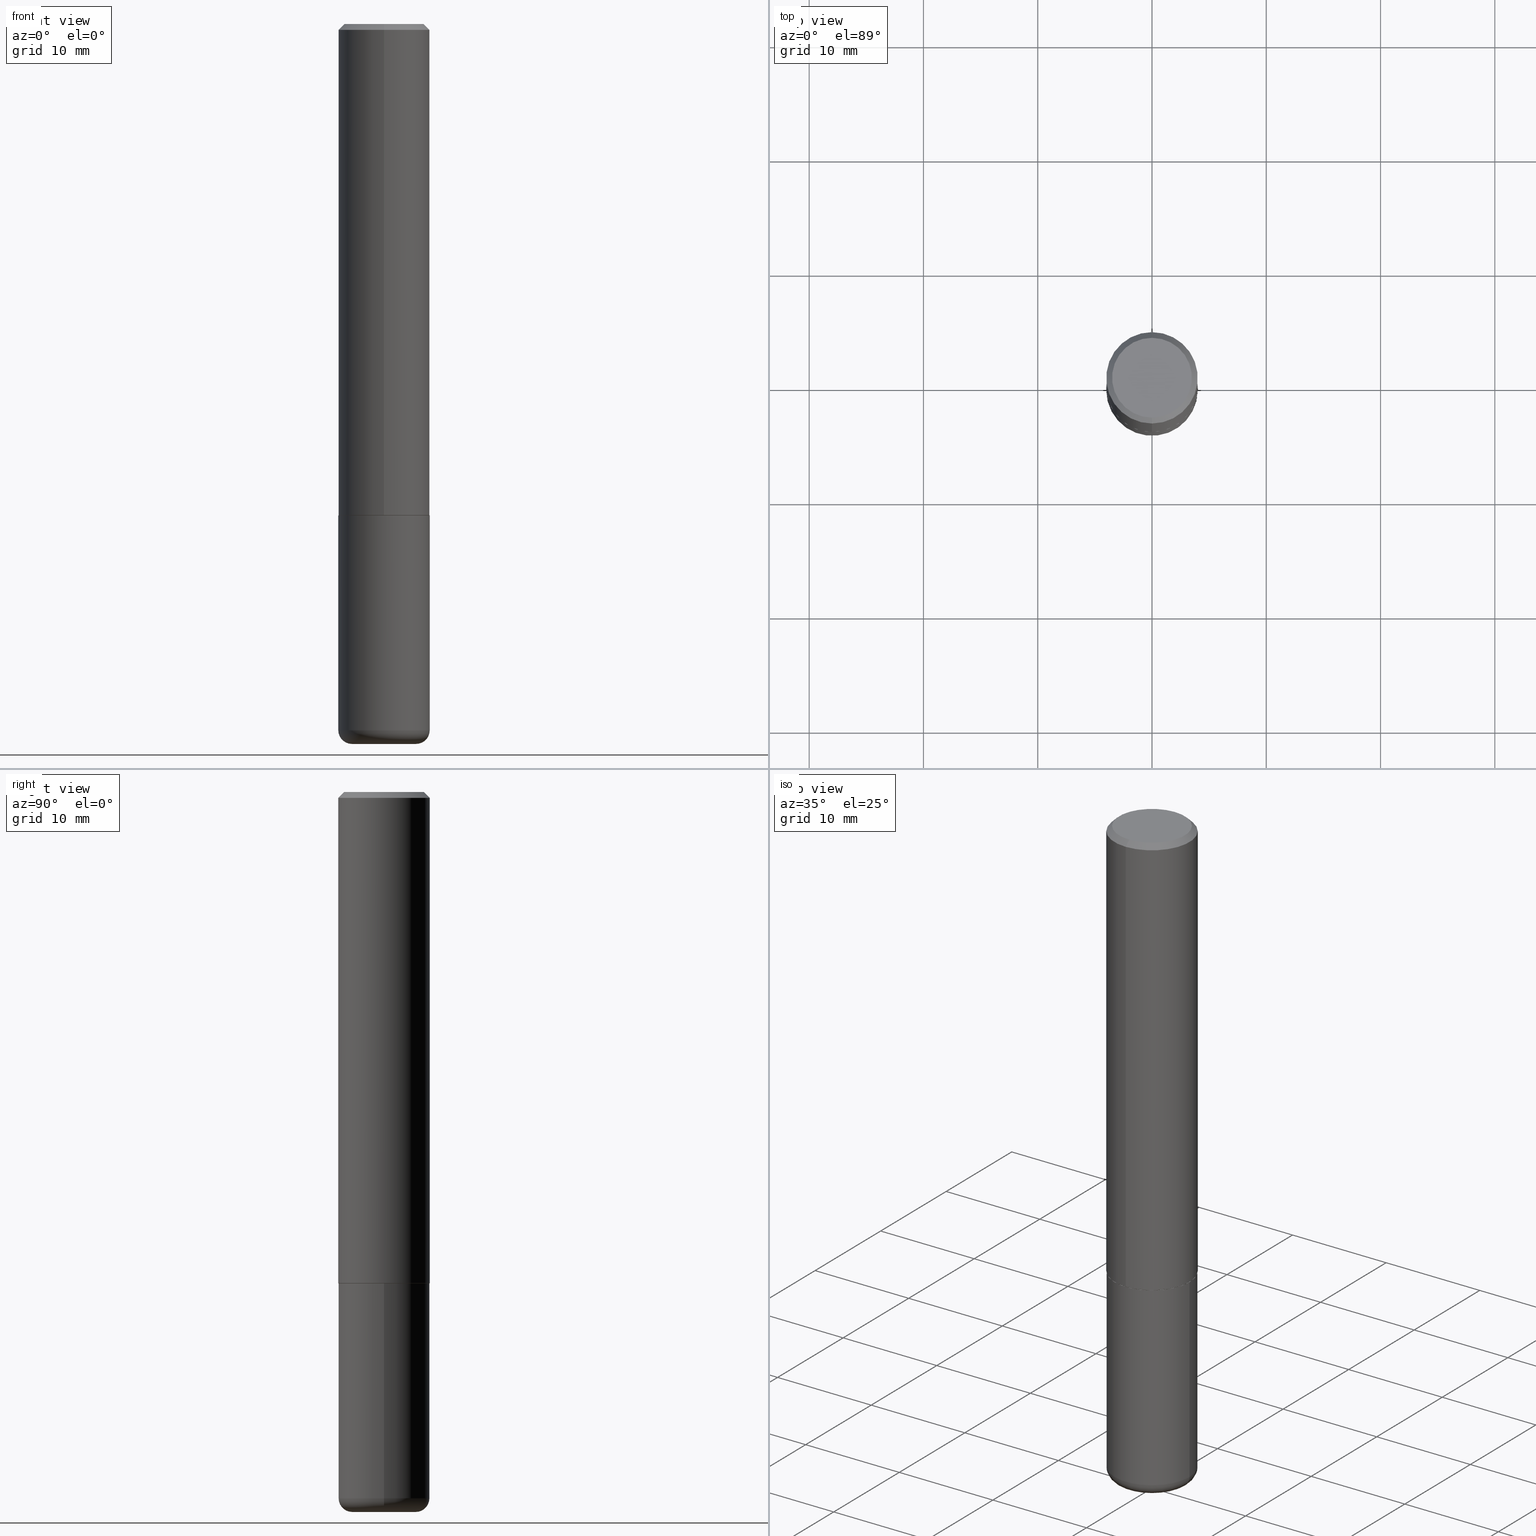
[diagram: canonical four-view strip — front | top / right | iso, engineering-drawing reading convention]
A machine part, canonical four-view strip (front | top / right | iso — engineering-drawing reading convention). The complete STEP part file that produces these views, byte-faithful:
ISO-10303-21;
HEADER;
FILE_DESCRIPTION (( 'STEP AP203' ),
    '1' );
FILE_NAME ('45150.STEP',
    '2024-03-04T15:10:30',
    ( '' ),
    ( '' ),
    'SwSTEP 2.0',
    'SolidWorks 2023',
    '' );
FILE_SCHEMA (( 'CONFIG_CONTROL_DESIGN' ));
ENDSEC;

DATA;
#1 = EDGE_LOOP ( 'NONE', ( #234, #64, #136, #199 ) ) ;
#2 = AXIS2_PLACEMENT_3D ( 'NONE', #149, #152, #279 ) ;
#3 = CIRCLE ( 'NONE', #412, 0.1575000000000000011 ) ;
#4 = EDGE_CURVE ( 'NONE', #377, #75, #38, .T. ) ;
#5 = APPROVAL_ROLE ( '' ) ;
#6 = COORDINATED_UNIVERSAL_TIME_OFFSET ( 5, 0, .BEHIND. ) ;
#7 = CARTESIAN_POINT ( 'NONE',  ( -1.099816621735587677E-15, -0.1575000000000001399, 5.491498622301760285E-16 ) ) ;
#8 = AXIS2_PLACEMENT_3D ( 'NONE', #70, #78, #360 ) ;
#9 = PERSON_AND_ORGANIZATION_ROLE ( 'classification_officer' ) ;
#10 = EDGE_CURVE ( 'NONE', #171, #101, #342, .T. ) ;
#11 = PERSON_AND_ORGANIZATION ( #401, #87 ) ;
#12 = DIRECTION ( 'NONE',  ( -6.982962677686265922E-15, -1.000000000000000000, 3.469013325287948560E-15 ) ) ;
#13 = EDGE_CURVE ( 'NONE', #361, #301, #168, .T. ) ;
#14 = CARTESIAN_POINT ( 'NONE',  ( 4.897662969233072813E-31, -6.973331583875268020E-17, -0.02000000000000006981 ) ) ;
#15 = CARTESIAN_POINT ( 'NONE',  ( -1.092833659057859065E-15, -0.1565000000000058844, -1.692899999999999849 ) ) ;
#16 = AXIS2_PLACEMENT_3D ( 'NONE', #331, #416, #164 ) ;
#17 = CC_DESIGN_APPROVAL ( #108, ( #398 ) ) ;
#18 = DIRECTION ( 'NONE',  ( 2.438088387897960049E-29, -3.491481338843145188E-15, -1.000000000000000000 ) ) ;
#19 = CARTESIAN_POINT ( 'NONE',  ( 1.111999381464598010E-15, 0.1564999999999940883, -1.692900000000000960 ) ) ;
#20 = DIRECTION ( 'NONE',  ( 2.448831484616528367E-29, -3.486665791937622522E-15, -1.000000000000000000 ) ) ;
#21 = ORIENTED_EDGE ( 'NONE', *, *, #245, .T. ) ;
#22 = VECTOR ( 'NONE', #186, 39.37007874015748143 ) ;
#23 = AXIS2_PLACEMENT_3D ( 'NONE', #261, #376, #157 ) ;
#24 = ADVANCED_FACE ( 'NONE', ( #363 ), #402, .F. ) ;
#25 = CARTESIAN_POINT ( 'NONE',  ( -1.099816621735546854E-15, -0.1575000000000061351, -1.691899999999999737 ) ) ;
#26 =( LENGTH_UNIT ( ) NAMED_UNIT ( * ) SI_UNIT ( $, .METRE. ) );
#27 = ORIENTED_EDGE ( 'NONE', *, *, #45, .T. ) ;
#28 = DIRECTION ( 'NONE',  ( 2.448831484616528086E-29, -3.486665791937622128E-15, -1.000000000000000000 ) ) ;
#29 = EDGE_LOOP ( 'NONE', ( #323, #229, #267, #165 ) ) ;
#30 = FACE_OUTER_BOUND ( 'NONE', #359, .T. ) ;
#31 = ADVANCED_FACE ( 'NONE', ( #309 ), #91, .T. ) ;
#32 = AXIS2_PLACEMENT_3D ( 'NONE', #235, #33, #241 ) ;
#33 = DIRECTION ( 'NONE',  ( -2.445468806185136597E-29, 3.491481338843145583E-15, 1.000000000000000000 ) ) ;
#34 = UNCERTAINTY_MEASURE_WITH_UNIT (LENGTH_MEASURE( 1.000000000000000082E-05 ), #411, 'distance_accuracy_value', 'NONE');
#35 = ORIENTED_EDGE ( 'NONE', *, *, #409, .F. ) ;
#36 = DIRECTION ( 'NONE',  ( -6.982962677686265133E-15, -1.000000000000000000, 3.486665791937622522E-15 ) ) ;
#37 = EDGE_LOOP ( 'NONE', ( #414, #324 ) ) ;
#38 = CIRCLE ( 'NONE', #107, 0.1575000000000000011 ) ;
#39 = EDGE_CURVE ( 'NONE', #51, #352, #328, .T. ) ;
#40 = VECTOR ( 'NONE', #132, 39.37007874015748143 ) ;
#41 = ORIENTED_EDGE ( 'NONE', *, *, #385, .T. ) ;
#42 = DIRECTION ( 'NONE',  ( -6.982962677686266711E-15, -1.000000000000000000, 3.486665791937622128E-15 ) ) ;
#43 = DATE_AND_TIME ( #337, #413 ) ;
#44 = ADVANCED_BREP_SHAPE_REPRESENTATION ( '45150', ( #214, #82, #161 ), #312 ) ;
#45 = EDGE_CURVE ( 'NONE', #171, #51, #210, .T. ) ;
#46 = CIRCLE ( 'NONE', #175, 0.1565000000000000002 ) ;
#47 = APPROVAL_ROLE ( '' ) ;
#48 = EDGE_CURVE ( 'NONE', #296, #305, #86, .T. ) ;
#49 = CARTESIAN_POINT ( 'NONE',  ( 0.1575000000000000011, -7.010545380263150133E-15, -1.692900000000000293 ) ) ;
#50 = CARTESIAN_POINT ( 'NONE',  ( 0.1102999999999999814, -9.430141948081447954E-15, -2.480299999999999727 ) ) ;
#51 = VERTEX_POINT ( 'NONE', #218 ) ;
#52 = AXIS2_PLACEMENT_3D ( 'NONE', #287, #410, #197 ) ;
#53 = FACE_OUTER_BOUND ( 'NONE', #173, .T. ) ;
#54 = DIRECTION ( 'NONE',  ( 4.937700262164537787E-15, 0.7071067811865436870, -0.7071067811865513475 ) ) ;
#55 = SHAPE_DEFINITION_REPRESENTATION ( #318, #44 ) ;
#56 = EDGE_CURVE ( 'NONE', #101, #171, #76, .T. ) ;
#57 = LINE ( 'NONE', #283, #406 ) ;
#58 = CARTESIAN_POINT ( 'NONE',  ( 5.950070152329056268E-29, -8.495123245539259088E-15, -2.433100000000000485 ) ) ;
#59 = EDGE_LOOP ( 'NONE', ( #327, #348, #67, #353 ) ) ;
#60 = AXIS2_PLACEMENT_3D ( 'NONE', #343, #316, #400 ) ;
#61 = ADVANCED_FACE ( 'NONE', ( #313 ), #192, .T. ) ;
#62 = MECHANICAL_CONTEXT ( 'NONE', #357, 'mechanical' ) ;
#63 = EDGE_CURVE ( 'NONE', #305, #75, #246, .T. ) ;
#64 = ORIENTED_EDGE ( 'NONE', *, *, #409, .T. ) ;
#65 = EDGE_LOOP ( 'NONE', ( #162, #236 ) ) ;
#66 = CARTESIAN_POINT ( 'NONE',  ( -1.080528434649015779E-15, -0.1575000000000000844, -0.01999999999999951816 ) ) ;
#67 = ORIENTED_EDGE ( 'NONE', *, *, #188, .F. ) ;
#68 = CIRCLE ( 'NONE', #23, 0.1375000000000003442 ) ;
#69 = CC_DESIGN_APPROVAL ( #196, ( #189 ) ) ;
#70 = CARTESIAN_POINT ( 'NONE',  ( 5.950070152329056268E-29, -8.495123245539257510E-15, -2.433100000000000041 ) ) ;
#71 = CARTESIAN_POINT ( 'NONE',  ( 4.145626820307322090E-29, -5.902576519171201823E-15, -1.692900000000000293 ) ) ;
#72 = CARTESIAN_POINT ( 'NONE',  ( 4.139934141990818918E-29, -5.910728758527562653E-15, -1.692900000000000293 ) ) ;
#73 = CC_DESIGN_PERSON_AND_ORGANIZATION_ASSIGNMENT ( #147, #271, ( #189 ) ) ;
#74 = EDGE_CURVE ( 'NONE', #155, #377, #213, .T. ) ;
#75 = VERTEX_POINT ( 'NONE', #49 ) ;
#76 = CIRCLE ( 'NONE', #320, 0.1575000000000002232 ) ;
#77 = AXIS2_PLACEMENT_3D ( 'NONE', #325, #28, #163 ) ;
#78 = DIRECTION ( 'NONE',  ( -2.445468806185136597E-29, 3.491481338843145583E-15, 1.000000000000000000 ) ) ;
#79 = APPROVAL_PERSON_ORGANIZATION ( #277, #108, #47 ) ;
#80 = DATE_AND_TIME ( #183, #407 ) ;
#81 = CARTESIAN_POINT ( 'NONE',  ( 0.000000000000000000, 0.000000000000000000, 0.000000000000000000 ) ) ;
#82 = MANIFOLD_SOLID_BREP ( 'Body-Move/Copy2[2]', #222 ) ;
#83 = SECURITY_CLASSIFICATION_LEVEL ( 'unclassified' ) ;
#84 = PRODUCT ( '45150', '45150', '', ( #62 ) ) ;
#85 = APPROVAL_STATUS ( 'not_yet_approved' ) ;
#86 = CIRCLE ( 'NONE', #257, 0.04719999999999970747 ) ;
#87 = ORGANIZATION ( 'UNSPECIFIED', 'UNSPECIFIED', '' ) ;
#88 = CARTESIAN_POINT ( 'NONE',  ( -0.1574999999999999456, 1.119104808822157406E-15, -7.747322767151474182E-30 ) ) ;
#89 = PLANE ( 'NONE',  #239 ) ;
#90 = DIRECTION ( 'NONE',  ( 1.000000000000000000, -6.982962677686267499E-15, 4.876176775795935793E-29 ) ) ;
#91 = CYLINDRICAL_SURFACE ( 'NONE', #405, 0.1574999999999999456 ) ;
#92 = CARTESIAN_POINT ( 'NONE',  ( 4.897662969233072813E-31, -6.973331583875268020E-17, -0.02000000000000006981 ) ) ;
#93 = FACE_OUTER_BOUND ( 'NONE', #278, .T. ) ;
#94 = EDGE_CURVE ( 'NONE', #101, #352, #282, .T. ) ;
#95 = DIRECTION ( 'NONE',  ( -2.445468806185136597E-29, 3.491481338843145583E-15, 1.000000000000000000 ) ) ;
#96 = ORIENTED_EDGE ( 'NONE', *, *, #94, .F. ) ;
#97 = APPLICATION_CONTEXT ( 'configuration controlled 3d designs of mechanical parts and assemblies' ) ;
#98 = PLANE ( 'NONE',  #77 ) ;
#99 = CONICAL_SURFACE ( 'NONE', #379, 0.1565000000000000002, 0.7853981633975336552 ) ;
#100 = DIRECTION ( 'NONE',  ( 1.000000000000000000, 0.000000000000000000, 0.000000000000000000 ) ) ;
#101 = VERTEX_POINT ( 'NONE', #216 ) ;
#102 = ORIENTED_EDGE ( 'NONE', *, *, #245, .F. ) ;
#103 = CARTESIAN_POINT ( 'NONE',  ( 4.145626820307322090E-29, -5.902576519171201823E-15, -1.692900000000000293 ) ) ;
#104 = EDGE_LOOP ( 'NONE', ( #384, #319, #293, #102 ) ) ;
#105 = ORIENTED_EDGE ( 'NONE', *, *, #39, .T. ) ;
#106 = ADVANCED_FACE ( 'NONE', ( #126 ), #115, .T. ) ;
#107 = AXIS2_PLACEMENT_3D ( 'NONE', #202, #139, #417 ) ;
#108 = APPROVAL ( #242, 'UNSPECIFIED' ) ;
#109 = CIRCLE ( 'NONE', #187, 0.1565000000000000002 ) ;
#110 = CARTESIAN_POINT ( 'NONE',  ( 0.000000000000000000, 0.000000000000000000, 0.000000000000000000 ) ) ;
#111 = ORIENTED_EDGE ( 'NONE', *, *, #48, .F. ) ;
#112 = PERSON_AND_ORGANIZATION_ROLE ( 'design_owner' ) ;
#113 = DIMENSIONAL_EXPONENTS ( 1.000000000000000000, 0.000000000000000000, 0.000000000000000000, 0.000000000000000000, 0.000000000000000000, 0.000000000000000000, 0.000000000000000000 ) ;
#114 = ADVANCED_FACE ( 'NONE', ( #53 ), #181, .T. ) ;
#115 = TOROIDAL_SURFACE ( 'NONE', #251, 0.1102999999999999814, 0.04719999999999970747 ) ;
#116 = ADVANCED_FACE ( 'NONE', ( #30 ), #286, .T. ) ;
#117 = CARTESIAN_POINT ( 'NONE',  ( 0.1102999999999999814, -9.265344028888053283E-15, -2.433100000000000485 ) ) ;
#118 = PERSON_AND_ORGANIZATION ( #401, #87 ) ;
#119 = CARTESIAN_POINT ( 'NONE',  ( 4.145626820307322090E-29, -5.902576519171201823E-15, -1.692900000000000293 ) ) ;
#120 = COORDINATED_UNIVERSAL_TIME_OFFSET ( 5, 0, .BEHIND. ) ;
#121 = CIRCLE ( 'NONE', #60, 0.1575000000000000289 ) ;
#122 = CARTESIAN_POINT ( 'NONE',  ( 4.143177988822704896E-29, -5.899089853379264171E-15, -1.691900000000000404 ) ) ;
#123 = EDGE_CURVE ( 'NONE', #263, #391, #109, .T. ) ;
#124 = CALENDAR_DATE ( 2024, 4, 3 ) ;
#125 = CARTESIAN_POINT ( 'NONE',  ( 1.119104808822158392E-15, 0.1575000000000001399, -5.491498622301760285E-16 ) ) ;
#126 = FACE_OUTER_BOUND ( 'NONE', #292, .T. ) ;
#127 = LINE ( 'NONE', #19, #40 ) ;
#128 = CARTESIAN_POINT ( 'NONE',  ( 0.1574999999999998346, -9.594939867274844201E-15, -2.433100000000000041 ) ) ;
#129 = FACE_OUTER_BOUND ( 'NONE', #37, .T. ) ;
#130 = CARTESIAN_POINT ( 'NONE',  ( 1.099816621735587480E-15, 0.1574999999999999456, -0.02000000000000061798 ) ) ;
#131 = ORIENTED_EDGE ( 'NONE', *, *, #215, .F. ) ;
#132 = DIRECTION ( 'NONE',  ( 5.024295867788490741E-15, 0.7071067811866103003, 0.7071067811864847341 ) ) ;
#133 = DIRECTION ( 'NONE',  ( 1.000000000000000000, -6.982962677686270655E-15, 0.000000000000000000 ) ) ;
#134 = ORIENTED_EDGE ( 'NONE', *, *, #45, .F. ) ;
#135 = EDGE_CURVE ( 'NONE', #391, #101, #127, .T. ) ;
#136 = ORIENTED_EDGE ( 'NONE', *, *, #63, .T. ) ;
#137 = EDGE_CURVE ( 'NONE', #301, #361, #68, .T. ) ;
#138 = FACE_OUTER_BOUND ( 'NONE', #388, .T. ) ;
#139 = DIRECTION ( 'NONE',  ( -2.445468806185136597E-29, 3.491481338843145583E-15, 1.000000000000000000 ) ) ;
#140 = VECTOR ( 'NONE', #370, 39.37007874015748143 ) ;
#141 = VECTOR ( 'NONE', #247, 39.37007874015748143 ) ;
#142 = ADVANCED_FACE ( 'NONE', ( #93 ), #195, .T. ) ;
#143 = APPROVAL_DATE_TIME ( #43, #196 ) ;
#144 = ORIENTED_EDGE ( 'NONE', *, *, #339, .F. ) ;
#145 = LOCAL_TIME ( 10, 10, 30.00000000000000000, #174 ) ;
#146 = CARTESIAN_POINT ( 'NONE',  ( 0.1574999999999999456, -1.099816621735586691E-15, 7.679978421878596632E-30 ) ) ;
#147 = PERSON_AND_ORGANIZATION ( #401, #87 ) ;
#148 = PRODUCT_RELATED_PRODUCT_CATEGORY ( 'detail', '', ( #84 ) ) ;
#149 = CARTESIAN_POINT ( 'NONE',  ( 4.897662969233072813E-31, -6.973331583875268020E-17, -0.02000000000000006981 ) ) ;
#150 = DIRECTION ( 'NONE',  ( -4.937700262164969294E-15, -0.7071067811866054154, 0.7071067811864896191 ) ) ;
#151 = AXIS2_PLACEMENT_3D ( 'NONE', #198, #322, #133 ) ;
#152 = DIRECTION ( 'NONE',  ( 2.448831484616528367E-29, -3.486665791937622522E-15, -1.000000000000000000 ) ) ;
#153 = DIRECTION ( 'NONE',  ( -6.982962677686264344E-15, -1.000000000000000000, 3.496114991891764787E-15 ) ) ;
#154 = DIRECTION ( 'NONE',  ( -1.000000000000000000, 6.982962677686265922E-15, -4.876176775795935793E-29 ) ) ;
#155 = VERTEX_POINT ( 'NONE', #221 ) ;
#156 = DIRECTION ( 'NONE',  ( -2.448831484616528367E-29, 3.486665791937622522E-15, 1.000000000000000000 ) ) ;
#157 = DIRECTION ( 'NONE',  ( -6.982962677686266711E-15, -1.000000000000000000, 3.486665791937622128E-15 ) ) ;
#158 = AXIS2_PLACEMENT_3D ( 'NONE', #14, #394, #153 ) ;
#159 = DIRECTION ( 'NONE',  ( -2.448831484616528367E-29, 3.486665791937622522E-15, 1.000000000000000000 ) ) ;
#160 = CARTESIAN_POINT ( 'NONE',  ( 7.437750759005219545E-45, -1.058992883066534334E-30, -3.037265244966386949E-16 ) ) ;
#161 = AXIS2_PLACEMENT_3D ( 'NONE', #81, #289, #100 ) ;
#162 = ORIENTED_EDGE ( 'NONE', *, *, #188, .T. ) ;
#163 = DIRECTION ( 'NONE',  ( 6.982962677686265922E-15, 1.000000000000000000, -3.486665791937622128E-15 ) ) ;
#164 = DIRECTION ( 'NONE',  ( -1.000000000000000000, 7.105427357601001859E-15, 0.000000000000000000 ) ) ;
#165 = ORIENTED_EDGE ( 'NONE', *, *, #314, .T. ) ;
#166 = ORIENTED_EDGE ( 'NONE', *, *, #39, .F. ) ;
#167 = EDGE_LOOP ( 'NONE', ( #255, #227 ) ) ;
#168 = CIRCLE ( 'NONE', #306, 0.1375000000000003442 ) ;
#169 = VECTOR ( 'NONE', #295, 39.37007874015748143 ) ;
#170 = LOCAL_TIME ( 10, 10, 30.00000000000000000, #369 ) ;
#171 = VERTEX_POINT ( 'NONE', #25 ) ;
#172 = CARTESIAN_POINT ( 'NONE',  ( 1.029986994958725760E-15, 0.1375000000000003442, -7.831430708880630046E-16 ) ) ;
#173 = EDGE_LOOP ( 'NONE', ( #268, #404, #21, #231 ) ) ;
#174 = COORDINATED_UNIVERSAL_TIME_OFFSET ( 5, 0, .BEHIND. ) ;
#175 = AXIS2_PLACEMENT_3D ( 'NONE', #71, #266, #299 ) ;
#176 = FACE_OUTER_BOUND ( 'NONE', #104, .T. ) ;
#177 = EDGE_CURVE ( 'NONE', #296, #275, #307, .T. ) ;
#178 = DIRECTION ( 'NONE',  ( -2.445468806185136597E-29, 3.491481338843145583E-15, 1.000000000000000000 ) ) ;
#179 = ORIENTED_EDGE ( 'NONE', *, *, #94, .T. ) ;
#180 = ADVANCED_FACE ( 'NONE', ( #129 ), #98, .F. ) ;
#181 = CONICAL_SURFACE ( 'NONE', #259, 0.1565000000000000002, 0.7853981633975336552 ) ;
#182 = CC_DESIGN_PERSON_AND_ORGANIZATION_ASSIGNMENT ( #304, #9, ( #398 ) ) ;
#183 = CALENDAR_DATE ( 2024, 4, 3 ) ;
#184 = DIRECTION ( 'NONE',  ( -2.448831484616528367E-29, 3.486665791937622522E-15, 1.000000000000000000 ) ) ;
#185 = DATE_AND_TIME ( #124, #170 ) ;
#186 = DIRECTION ( 'NONE',  ( -2.448831484616528086E-29, 3.486665791937622128E-15, 1.000000000000000000 ) ) ;
#187 = AXIS2_PLACEMENT_3D ( 'NONE', #103, #344, #256 ) ;
#188 = EDGE_CURVE ( 'NONE', #75, #377, #3, .T. ) ;
#189 = PRODUCT_DEFINITION_FORMATION_WITH_SPECIFIED_SOURCE ( 'ANY', '', #84, .NOT_KNOWN. ) ;
#190 = DIRECTION ( 'NONE',  ( -2.445468806185136597E-29, 3.491481338843145583E-15, 1.000000000000000000 ) ) ;
#191 = CARTESIAN_POINT ( 'NONE',  ( -1.092833659057859065E-15, -0.1565000000000058844, -1.692899999999999849 ) ) ;
#192 = CONICAL_SURFACE ( 'NONE', #2, 0.1575000000000000289, 0.7853981633974463916 ) ;
#193 = DIRECTION ( 'NONE',  ( -2.445468806185136597E-29, 3.491481338843145583E-15, 1.000000000000000000 ) ) ;
#194 = DIRECTION ( 'NONE',  ( -6.982962677686265133E-15, -1.000000000000000000, 3.486665791937622522E-15 ) ) ;
#195 = TOROIDAL_SURFACE ( 'NONE', #368, 0.1102999999999999814, 0.04719999999999970747 ) ;
#196 = APPROVAL ( #85, 'UNSPECIFIED' ) ;
#197 = DIRECTION ( 'NONE',  ( 1.000000000000000000, -6.982962677686265133E-15, 0.000000000000000000 ) ) ;
#198 = CARTESIAN_POINT ( 'NONE',  ( 5.950070152329056268E-29, -8.495123245539257510E-15, -2.433100000000000041 ) ) ;
#199 = ORIENTED_EDGE ( 'NONE', *, *, #4, .F. ) ;
#200 = DIRECTION ( 'NONE',  ( -6.982962677686265922E-15, -1.000000000000000000, 3.491179544618866730E-15 ) ) ;
#201 = CARTESIAN_POINT ( 'NONE',  ( 0.000000000000000000, 0.000000000000000000, 0.000000000000000000 ) ) ;
#202 = CARTESIAN_POINT ( 'NONE',  ( 4.139934141990818918E-29, -5.910728758527562653E-15, -1.692900000000000293 ) ) ;
#203 = CC_DESIGN_APPROVAL ( #258, ( #253 ) ) ;
#204 = ORIENTED_EDGE ( 'NONE', *, *, #177, .T. ) ;
#205 = PERSON_AND_ORGANIZATION ( #401, #87 ) ;
#206 = AXIS2_PLACEMENT_3D ( 'NONE', #119, #249, #276 ) ;
#207 = APPLICATION_PROTOCOL_DEFINITION ( 'international standard', 'config_control_design', 1994, #97 ) ;
#208 = ORIENTED_EDGE ( 'NONE', *, *, #177, .F. ) ;
#209 = PERSON_AND_ORGANIZATION_ROLE ( 'creator' ) ;
#210 = LINE ( 'NONE', #7, #22 ) ;
#211 = APPROVAL_PERSON_ORGANIZATION ( #205, #258, #5 ) ;
#212 = DATE_AND_TIME ( #365, #240 ) ;
#213 = LINE ( 'NONE', #88, #243 ) ;
#214 = MANIFOLD_SOLID_BREP ( 'Body-Move/Copy2[1]', #397 ) ;
#215 = EDGE_CURVE ( 'NONE', #275, #296, #375, .T. ) ;
#216 = CARTESIAN_POINT ( 'NONE',  ( 1.119104808822179494E-15, 0.1574999999999943112, -1.691900000000000848 ) ) ;
#217 = PERSON_AND_ORGANIZATION ( #401, #87 ) ;
#218 = CARTESIAN_POINT ( 'NONE',  ( -1.080528434649015779E-15, -0.1575000000000000844, -0.01999999999999951816 ) ) ;
#219 = FACE_OUTER_BOUND ( 'NONE', #65, .T. ) ;
#220 = EDGE_CURVE ( 'NONE', #305, #155, #281, .T. ) ;
#221 = CARTESIAN_POINT ( 'NONE',  ( -0.1574999999999998346, -7.376018436717101484E-15, -2.433100000000000041 ) ) ;
#222 = CLOSED_SHELL ( 'NONE', ( #228, #364, #61, #335, #393, #114, #24, #180 ) ) ;
#223 = DIRECTION ( 'NONE',  ( 1.000000000000000000, -6.982962677686263555E-15, 4.883557194083111780E-29 ) ) ;
#224 = DIRECTION ( 'NONE',  ( -2.448831484616528367E-29, 3.486665791937622522E-15, 1.000000000000000000 ) ) ;
#225 = AXIS2_PLACEMENT_3D ( 'NONE', #408, #284, #252 ) ;
#226 = CARTESIAN_POINT ( 'NONE',  ( 4.145626820307322090E-29, -5.902576519171201823E-15, -1.692900000000000293 ) ) ;
#227 = ORIENTED_EDGE ( 'NONE', *, *, #373, .F. ) ;
#228 = ADVANCED_FACE ( 'NONE', ( #176 ), #99, .T. ) ;
#229 = ORIENTED_EDGE ( 'NONE', *, *, #13, .F. ) ;
#230 = CYLINDRICAL_SURFACE ( 'NONE', #334, 0.1575000000000001399 ) ;
#231 = ORIENTED_EDGE ( 'NONE', *, *, #56, .F. ) ;
#232 = AXIS2_PLACEMENT_3D ( 'NONE', #201, #224, #36 ) ;
#233 = CC_DESIGN_DATE_AND_TIME_ASSIGNMENT ( #80, #269, ( #253 ) ) ;
#234 = ORIENTED_EDGE ( 'NONE', *, *, #74, .F. ) ;
#235 = CARTESIAN_POINT ( 'NONE',  ( 6.065496279980993634E-29, -8.659921164732653758E-15, -2.480299999999999727 ) ) ;
#236 = ORIENTED_EDGE ( 'NONE', *, *, #4, .T. ) ;
#237 = APPLICATION_PROTOCOL_DEFINITION ( 'international standard', 'config_control_design', 1994, #357 ) ;
#238 = PERSON_AND_ORGANIZATION_ROLE ( 'creator' ) ;
#239 = AXIS2_PLACEMENT_3D ( 'NONE', #341, #18, #154 ) ;
#240 = LOCAL_TIME ( 10, 10, 30.00000000000000000, #6 ) ;
#241 = DIRECTION ( 'NONE',  ( 1.000000000000000000, -6.982962677686265133E-15, 0.000000000000000000 ) ) ;
#242 = APPROVAL_STATUS ( 'not_yet_approved' ) ;
#243 = VECTOR ( 'NONE', #274, 39.37007874015748143 ) ;
#244 = VECTOR ( 'NONE', #150, 39.37007874015748143 ) ;
#245 = EDGE_CURVE ( 'NONE', #263, #171, #298, .T. ) ;
#246 = LINE ( 'NONE', #146, #140 ) ;
#247 = DIRECTION ( 'NONE',  ( -2.448831484616528086E-29, 3.486665791937622128E-15, 1.000000000000000000 ) ) ;
#248 = FACE_OUTER_BOUND ( 'NONE', #59, .T. ) ;
#249 = DIRECTION ( 'NONE',  ( -2.448831484616528086E-29, 3.486665791937622128E-15, 1.000000000000000000 ) ) ;
#250 = CARTESIAN_POINT ( 'NONE',  ( -0.1102999999999999814, -7.626105481953182139E-15, -2.480299999999999727 ) ) ;
#251 = AXIS2_PLACEMENT_3D ( 'NONE', #326, #193, #315 ) ;
#252 = DIRECTION ( 'NONE',  ( -1.000000000000000000, 6.982962677686265922E-15, -4.876176775795935793E-29 ) ) ;
#253 = PRODUCT_DEFINITION ( 'UNKNOWN', '', #189, #390 ) ;
#254 = ADVANCED_FACE ( 'NONE', ( #219 ), #89, .F. ) ;
#255 = ORIENTED_EDGE ( 'NONE', *, *, #123, .F. ) ;
#256 = DIRECTION ( 'NONE',  ( -6.982962677686265922E-15, -1.000000000000000000, 3.491179544618866730E-15 ) ) ;
#257 = AXIS2_PLACEMENT_3D ( 'NONE', #117, #399, #340 ) ;
#258 = APPROVAL ( #336, 'UNSPECIFIED' ) ;
#259 = AXIS2_PLACEMENT_3D ( 'NONE', #226, #159, #347 ) ;
#260 = ORIENTED_EDGE ( 'NONE', *, *, #215, .T. ) ;
#261 = CARTESIAN_POINT ( 'NONE',  ( 7.437750759005219545E-45, -1.058992883066534334E-30, -3.037265244966386949E-16 ) ) ;
#262 =( NAMED_UNIT ( * ) PLANE_ANGLE_UNIT ( ) SI_UNIT ( $, .RADIAN. ) );
#263 = VERTEX_POINT ( 'NONE', #191 ) ;
#264 = CALENDAR_DATE ( 2024, 4, 3 ) ;
#265 = ORIENTED_EDGE ( 'NONE', *, *, #220, .F. ) ;
#266 = DIRECTION ( 'NONE',  ( -2.448831484616528367E-29, 3.486665791937622522E-15, 1.000000000000000000 ) ) ;
#267 = ORIENTED_EDGE ( 'NONE', *, *, #330, .T. ) ;
#268 = ORIENTED_EDGE ( 'NONE', *, *, #135, .F. ) ;
#269 = DATE_TIME_ROLE ( 'creation_date' ) ;
#270 = CC_DESIGN_PERSON_AND_ORGANIZATION_ASSIGNMENT ( #11, #238, ( #189 ) ) ;
#271 = PERSON_AND_ORGANIZATION_ROLE ( 'design_supplier' ) ;
#272 = CONICAL_SURFACE ( 'NONE', #345, 0.1575000000000000289, 0.7853981633974463916 ) ;
#273 = DIRECTION ( 'NONE',  ( -6.982962677686265922E-15, -1.000000000000000000, 3.469013325287948560E-15 ) ) ;
#274 = DIRECTION ( 'NONE',  ( -2.445468806185136877E-29, 3.491481338843145188E-15, 1.000000000000000000 ) ) ;
#275 = VERTEX_POINT ( 'NONE', #250 ) ;
#276 = DIRECTION ( 'NONE',  ( -6.982962677686265922E-15, -1.000000000000000000, 3.486665791937622128E-15 ) ) ;
#277 = PERSON_AND_ORGANIZATION ( #401, #87 ) ;
#278 = EDGE_LOOP ( 'NONE', ( #144, #260, #415, #35 ) ) ;
#279 = DIRECTION ( 'NONE',  ( 6.982962677686264344E-15, 1.000000000000000000, -3.496114991891764787E-15 ) ) ;
#280 = DATE_TIME_ROLE ( 'classification_date' ) ;
#281 = CIRCLE ( 'NONE', #8, 0.1574999999999999456 ) ;
#282 = LINE ( 'NONE', #125, #141 ) ;
#283 = CARTESIAN_POINT ( 'NONE',  ( 1.099816621735587480E-15, 0.1574999999999999456, -0.02000000000000061798 ) ) ;
#284 = DIRECTION ( 'NONE',  ( 2.438088387897960049E-29, -3.491481338843145188E-15, -1.000000000000000000 ) ) ;
#285 = CARTESIAN_POINT ( 'NONE',  ( -1.011923454671301828E-15, -0.1375000000000003442, 1.756900218947856148E-16 ) ) ;
#286 = PLANE ( 'NONE',  #225 ) ;
#287 = CARTESIAN_POINT ( 'NONE',  ( 6.065496279980993634E-29, -8.659921164732653758E-15, -2.480299999999999727 ) ) ;
#288 = LENGTH_MEASURE_WITH_UNIT ( LENGTH_MEASURE( 0.02539999999999999897 ), #26 );
#289 = DIRECTION ( 'NONE',  ( 0.000000000000000000, 0.000000000000000000, 1.000000000000000000 ) ) ;
#290 = FACE_OUTER_BOUND ( 'NONE', #332, .T. ) ;
#291 = DIRECTION ( 'NONE',  ( -2.448831484616528367E-29, 3.486665791937622522E-15, 1.000000000000000000 ) ) ;
#292 = EDGE_LOOP ( 'NONE', ( #204, #386, #265, #111 ) ) ;
#293 = ORIENTED_EDGE ( 'NONE', *, *, #10, .F. ) ;
#294 = CARTESIAN_POINT ( 'NONE',  ( 4.145626820307322090E-29, -5.902576519171201823E-15, -1.692900000000000293 ) ) ;
#295 = DIRECTION ( 'NONE',  ( -4.851104656540954020E-15, -0.7071067811865485719, -0.7071067811865464625 ) ) ;
#296 = VERTEX_POINT ( 'NONE', #50 ) ;
#297 = APPROVAL_DATE_TIME ( #383, #258 ) ;
#298 = LINE ( 'NONE', #15, #244 ) ;
#299 = DIRECTION ( 'NONE',  ( -6.982962677686265922E-15, -1.000000000000000000, 3.491179544618866730E-15 ) ) ;
#300 = ORIENTED_EDGE ( 'NONE', *, *, #10, .T. ) ;
#301 = VERTEX_POINT ( 'NONE', #285 ) ;
#302 = ORIENTED_EDGE ( 'NONE', *, *, #330, .F. ) ;
#303 = CC_DESIGN_DATE_AND_TIME_ASSIGNMENT ( #212, #280, ( #398 ) ) ;
#304 = PERSON_AND_ORGANIZATION ( #401, #87 ) ;
#305 = VERTEX_POINT ( 'NONE', #128 ) ;
#306 = AXIS2_PLACEMENT_3D ( 'NONE', #160, #291, #42 ) ;
#307 = CIRCLE ( 'NONE', #52, 0.1102999999999999814 ) ;
#308 = APPROVAL_ROLE ( '' ) ;
#309 = FACE_OUTER_BOUND ( 'NONE', #1, .T. ) ;
#310 = APPROVAL_DATE_TIME ( #185, #108 ) ;
#311 = PERSON_AND_ORGANIZATION ( #401, #87 ) ;
#312 =( GEOMETRIC_REPRESENTATION_CONTEXT ( 3 ) GLOBAL_UNCERTAINTY_ASSIGNED_CONTEXT ( ( #34 ) ) GLOBAL_UNIT_ASSIGNED_CONTEXT ( ( #411, #262, #378 ) ) REPRESENTATION_CONTEXT ( 'NONE', 'WORKASPACE' ) );
#313 = FACE_OUTER_BOUND ( 'NONE', #333, .T. ) ;
#314 = EDGE_CURVE ( 'NONE', #352, #51, #121, .T. ) ;
#315 = DIRECTION ( 'NONE',  ( 1.000000000000000000, -6.982962677686263555E-15, 4.883557194083111780E-29 ) ) ;
#316 = DIRECTION ( 'NONE',  ( -2.448831484616528367E-29, 3.486665791937622522E-15, 1.000000000000000000 ) ) ;
#317 = ADVANCED_FACE ( 'NONE', ( #248 ), #403, .T. ) ;
#318 = PRODUCT_DEFINITION_SHAPE ( 'NONE', 'NONE',  #253 ) ;
#319 = ORIENTED_EDGE ( 'NONE', *, *, #135, .T. ) ;
#320 = AXIS2_PLACEMENT_3D ( 'NONE', #122, #184, #12 ) ;
#321 = DIRECTION ( 'NONE',  ( -2.445468806185136597E-29, 3.491481338843145583E-15, 1.000000000000000000 ) ) ;
#322 = DIRECTION ( 'NONE',  ( -2.445468806185136597E-29, 3.491481338843145583E-15, 1.000000000000000000 ) ) ;
#323 = ORIENTED_EDGE ( 'NONE', *, *, #385, .F. ) ;
#324 = ORIENTED_EDGE ( 'NONE', *, *, #137, .T. ) ;
#325 = CARTESIAN_POINT ( 'NONE',  ( 9.601573681818640393E-16, 0.1375000000000003442, -6.312798086397435832E-16 ) ) ;
#326 = CARTESIAN_POINT ( 'NONE',  ( 5.950070152329056268E-29, -8.495123245539259088E-15, -2.433100000000000485 ) ) ;
#327 = ORIENTED_EDGE ( 'NONE', *, *, #220, .T. ) ;
#328 = CIRCLE ( 'NONE', #158, 0.1575000000000000289 ) ;
#329 = DIRECTION ( 'NONE',  ( 6.982962677686264344E-15, 1.000000000000000000, -3.496114991891764787E-15 ) ) ;
#330 = EDGE_CURVE ( 'NONE', #361, #352, #57, .T. ) ;
#331 = CARTESIAN_POINT ( 'NONE',  ( -0.1102999999999999814, -7.711394607995868123E-15, -2.433100000000000485 ) ) ;
#332 = EDGE_LOOP ( 'NONE', ( #300, #179, #166, #134 ) ) ;
#333 = EDGE_LOOP ( 'NONE', ( #349, #41, #105, #302 ) ) ;
#334 = AXIS2_PLACEMENT_3D ( 'NONE', #110, #358, #194 ) ;
#335 = ADVANCED_FACE ( 'NONE', ( #374 ), #272, .T. ) ;
#336 = APPROVAL_STATUS ( 'not_yet_approved' ) ;
#337 = CALENDAR_DATE ( 2024, 4, 3 ) ;
#338 = AXIS2_PLACEMENT_3D ( 'NONE', #356, #156, #273 ) ;
#339 = EDGE_CURVE ( 'NONE', #275, #155, #387, .T. ) ;
#340 = DIRECTION ( 'NONE',  ( 1.000000000000000000, -6.982962677686261189E-15, 0.000000000000000000 ) ) ;
#341 = CARTESIAN_POINT ( 'NONE',  ( 4.139934141990818918E-29, -5.910728758527562653E-15, -1.692900000000000293 ) ) ;
#342 = CIRCLE ( 'NONE', #338, 0.1575000000000002232 ) ;
#343 = CARTESIAN_POINT ( 'NONE',  ( 4.897662969233072813E-31, -6.973331583875268020E-17, -0.02000000000000006981 ) ) ;
#344 = DIRECTION ( 'NONE',  ( -2.448831484616528367E-29, 3.486665791937622522E-15, 1.000000000000000000 ) ) ;
#345 = AXIS2_PLACEMENT_3D ( 'NONE', #92, #20, #329 ) ;
#346 = CC_DESIGN_SECURITY_CLASSIFICATION ( #398, ( #189 ) ) ;
#347 = DIRECTION ( 'NONE',  ( -6.982962677686265922E-15, -1.000000000000000000, 3.491179544618866730E-15 ) ) ;
#348 = ORIENTED_EDGE ( 'NONE', *, *, #74, .T. ) ;
#349 = ORIENTED_EDGE ( 'NONE', *, *, #137, .F. ) ;
#350 = ORIENTED_EDGE ( 'NONE', *, *, #314, .F. ) ;
#351 = CYLINDRICAL_SURFACE ( 'NONE', #232, 0.1575000000000001399 ) ;
#352 = VERTEX_POINT ( 'NONE', #130 ) ;
#353 = ORIENTED_EDGE ( 'NONE', *, *, #63, .F. ) ;
#354 = LINE ( 'NONE', #66, #169 ) ;
#355 = AXIS2_PLACEMENT_3D ( 'NONE', #396, #95, #371 ) ;
#356 = CARTESIAN_POINT ( 'NONE',  ( 4.143177988822704896E-29, -5.899089853379264171E-15, -1.691900000000000404 ) ) ;
#357 = APPLICATION_CONTEXT ( 'configuration controlled 3d designs of mechanical parts and assemblies' ) ;
#358 = DIRECTION ( 'NONE',  ( -2.448831484616528367E-29, 3.486665791937622522E-15, 1.000000000000000000 ) ) ;
#359 = EDGE_LOOP ( 'NONE', ( #208, #131 ) ) ;
#360 = DIRECTION ( 'NONE',  ( 1.000000000000000000, -6.982962677686270655E-15, 0.000000000000000000 ) ) ;
#361 = VERTEX_POINT ( 'NONE', #172 ) ;
#362 = DIRECTION ( 'NONE',  ( -2.448831484616528367E-29, 3.486665791937622522E-15, 1.000000000000000000 ) ) ;
#363 = FACE_OUTER_BOUND ( 'NONE', #167, .T. ) ;
#364 = ADVANCED_FACE ( 'NONE', ( #290 ), #351, .T. ) ;
#365 = CALENDAR_DATE ( 2024, 4, 3 ) ;
#366 = CC_DESIGN_PERSON_AND_ORGANIZATION_ASSIGNMENT ( #217, #112, ( #84 ) ) ;
#367 = CARTESIAN_POINT ( 'NONE',  ( 0.000000000000000000, 0.000000000000000000, 0.000000000000000000 ) ) ;
#368 = AXIS2_PLACEMENT_3D ( 'NONE', #58, #321, #223 ) ;
#369 = COORDINATED_UNIVERSAL_TIME_OFFSET ( 5, 0, .BEHIND. ) ;
#370 = DIRECTION ( 'NONE',  ( -2.445468806185136877E-29, 3.491481338843145188E-15, 1.000000000000000000 ) ) ;
#371 = DIRECTION ( 'NONE',  ( 1.000000000000000000, -6.982962677686267499E-15, 4.876176775795935793E-29 ) ) ;
#372 = CC_DESIGN_PERSON_AND_ORGANIZATION_ASSIGNMENT ( #118, #209, ( #253 ) ) ;
#373 = EDGE_CURVE ( 'NONE', #391, #263, #46, .T. ) ;
#374 = FACE_OUTER_BOUND ( 'NONE', #29, .T. ) ;
#375 = CIRCLE ( 'NONE', #32, 0.1102999999999999814 ) ;
#376 = DIRECTION ( 'NONE',  ( -2.448831484616528367E-29, 3.486665791937622522E-15, 1.000000000000000000 ) ) ;
#377 = VERTEX_POINT ( 'NONE', #418 ) ;
#378 =( NAMED_UNIT ( * ) SI_UNIT ( $, .STERADIAN. ) SOLID_ANGLE_UNIT ( ) );
#379 = AXIS2_PLACEMENT_3D ( 'NONE', #294, #362, #200 ) ;
#380 = APPROVAL_PERSON_ORGANIZATION ( #311, #196, #308 ) ;
#381 = CARTESIAN_POINT ( 'NONE',  ( 1.115552095143399501E-15, 0.1564999999999940883, -1.692900000000000960 ) ) ;
#382 = ORIENTED_EDGE ( 'NONE', *, *, #56, .T. ) ;
#383 = DATE_AND_TIME ( #264, #145 ) ;
#384 = ORIENTED_EDGE ( 'NONE', *, *, #123, .T. ) ;
#385 = EDGE_CURVE ( 'NONE', #301, #51, #354, .T. ) ;
#386 = ORIENTED_EDGE ( 'NONE', *, *, #339, .T. ) ;
#387 = CIRCLE ( 'NONE', #16, 0.04719999999999970747 ) ;
#388 = EDGE_LOOP ( 'NONE', ( #96, #382, #27, #350 ) ) ;
#389 = DIRECTION ( 'NONE',  ( 1.000000000000000000, -6.982962677686268288E-15, 0.000000000000000000 ) ) ;
#390 = DESIGN_CONTEXT ( 'detailed design', #97, 'design' ) ;
#391 = VERTEX_POINT ( 'NONE', #381 ) ;
#392 = CIRCLE ( 'NONE', #151, 0.1574999999999999456 ) ;
#393 = ADVANCED_FACE ( 'NONE', ( #138 ), #230, .T. ) ;
#394 = DIRECTION ( 'NONE',  ( -2.448831484616528367E-29, 3.486665791937622522E-15, 1.000000000000000000 ) ) ;
#395 = COORDINATED_UNIVERSAL_TIME_OFFSET ( 5, 0, .BEHIND. ) ;
#396 = CARTESIAN_POINT ( 'NONE',  ( 0.000000000000000000, 0.000000000000000000, 0.000000000000000000 ) ) ;
#397 = CLOSED_SHELL ( 'NONE', ( #317, #106, #254, #31, #142, #116 ) ) ;
#398 = SECURITY_CLASSIFICATION ( '', '', #83 ) ;
#399 = DIRECTION ( 'NONE',  ( -6.982962677686266711E-15, -1.000000000000000000, 3.491481338843145583E-15 ) ) ;
#400 = DIRECTION ( 'NONE',  ( -6.982962677686264344E-15, -1.000000000000000000, 3.496114991891764787E-15 ) ) ;
#401 = PERSON ( 'UNSPECIFIED', 'UNSPECIFIED', 'UNSPECIFIED', ('UNSPECIFIED'), ('UNSPECIFIED'), ('UNSPECIFIED') ) ;
#402 = PLANE ( 'NONE',  #206 ) ;
#403 = CYLINDRICAL_SURFACE ( 'NONE', #355, 0.1574999999999999456 ) ;
#404 = ORIENTED_EDGE ( 'NONE', *, *, #373, .T. ) ;
#405 = AXIS2_PLACEMENT_3D ( 'NONE', #367, #190, #90 ) ;
#406 = VECTOR ( 'NONE', #54, 39.37007874015748143 ) ;
#407 = LOCAL_TIME ( 10, 10, 30.00000000000000000, #120 ) ;
#408 = CARTESIAN_POINT ( 'NONE',  ( 1.464485738937917037E-28, 3.626212250834818165E-15, -2.480300000000000171 ) ) ;
#409 = EDGE_CURVE ( 'NONE', #155, #305, #392, .T. ) ;
#410 = DIRECTION ( 'NONE',  ( -2.445468806185136597E-29, 3.491481338843145583E-15, 1.000000000000000000 ) ) ;
#411 =( CONVERSION_BASED_UNIT ( 'INCH', #288 ) LENGTH_UNIT ( ) NAMED_UNIT ( #113 ) );
#412 = AXIS2_PLACEMENT_3D ( 'NONE', #72, #178, #389 ) ;
#413 = LOCAL_TIME ( 10, 10, 30.00000000000000000, #395 ) ;
#414 = ORIENTED_EDGE ( 'NONE', *, *, #13, .T. ) ;
#415 = ORIENTED_EDGE ( 'NONE', *, *, #48, .T. ) ;
#416 = DIRECTION ( 'NONE',  ( 7.105427357601001859E-15, 1.000000000000000000, -3.491481338843145583E-15 ) ) ;
#417 = DIRECTION ( 'NONE',  ( 1.000000000000000000, -6.982962677686268288E-15, 0.000000000000000000 ) ) ;
#418 = CARTESIAN_POINT ( 'NONE',  ( -0.1575000000000000011, -6.083821193211252478E-15, -1.692900000000000293 ) ) ;
ENDSEC;
END-ISO-10303-21;
